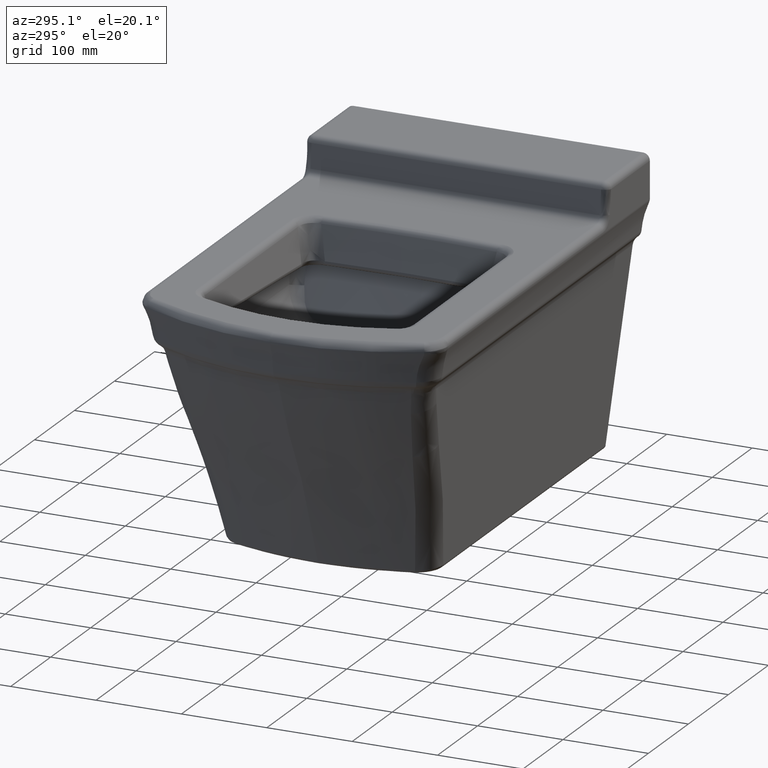
[diagram: clean part render]
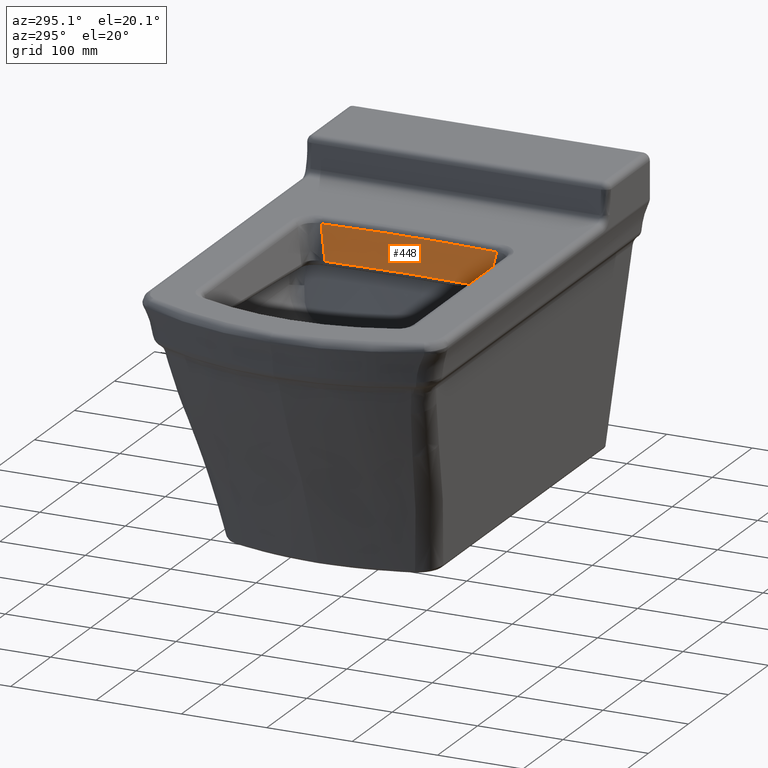
[diagram: same view with one face highlighted and labeled with its STEP entity id]
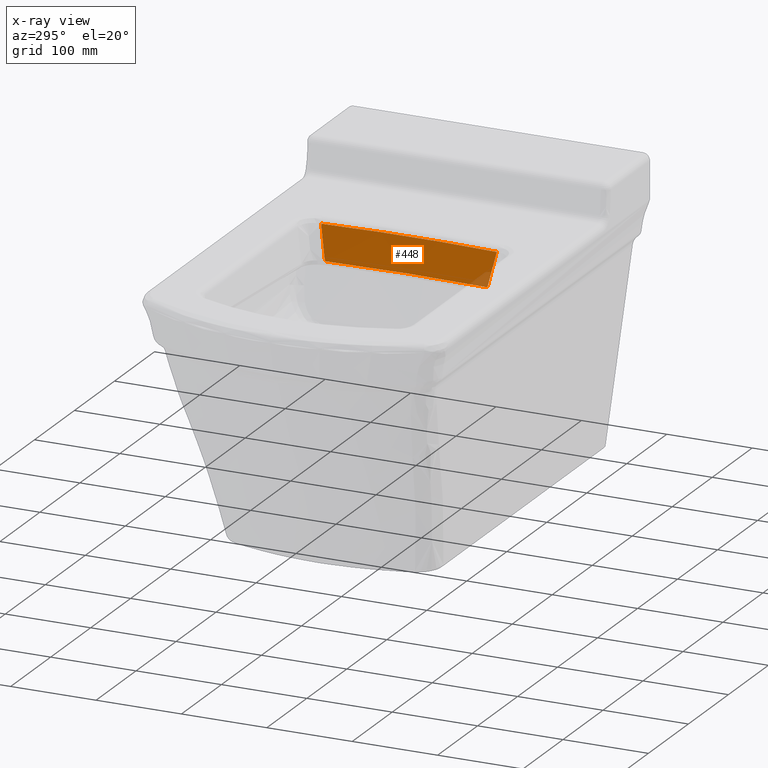
[diagram: x-ray of the same camera — body ghosted, the highlighted face saturated]
A machine part, auxiliary view. The second image highlights one B-rep face of the part: STEP entity #448.
The next image is the same camera in x-ray: the body ghosted, the highlighted face saturated — about 3% of this face is hidden behind the body in this view.
In plain terms, the highlighted conical surface has half-angle 11 deg.
Its self-contained STEP definition (entity closure, byte-faithful):
#177=CONICAL_SURFACE('',#3265,1446.38826422028,11.);
#241=CIRCLE('',#3264,1444.01725249402);
#448=ADVANCED_FACE('',(#703),#177,.F.);
#703=FACE_OUTER_BOUND('',#912,.T.);
#912=EDGE_LOOP('',(#1207,#1208,#1209,#1210,#1211));
#1207=ORIENTED_EDGE('',*,*,#2499,.T.);
#1208=ORIENTED_EDGE('',*,*,#2500,.T.);
#1209=ORIENTED_EDGE('',*,*,#2501,.F.);
#1210=ORIENTED_EDGE('',*,*,#2502,.F.);
#1211=ORIENTED_EDGE('',*,*,#2503,.T.);
#2193=VERTEX_POINT('',#4276);
#2194=VERTEX_POINT('',#4277);
#2195=VERTEX_POINT('',#4282);
#2196=VERTEX_POINT('',#4287);
#2197=VERTEX_POINT('',#4295);
#2499=EDGE_CURVE('',#2193,#2194,#2952,.T.);
#2500=EDGE_CURVE('',#2194,#2195,#2953,.T.);
#2501=EDGE_CURVE('',#2196,#2195,#2954,.T.);
#2502=EDGE_CURVE('',#2197,#2196,#2955,.T.);
#2503=EDGE_CURVE('',#2197,#2193,#241,.T.);
#2952=B_SPLINE_CURVE_WITH_KNOTS('',3,(#4269,#4270,#4271,#4272,#4273,#4274,
#4275),.UNSPECIFIED.,.F.,.F.,(4,3,4),(0.,0.412213099728883,1.),
 .UNSPECIFIED.);
#2953=B_SPLINE_CURVE_WITH_KNOTS('',3,(#4278,#4279,#4280,#4281),
 .UNSPECIFIED.,.F.,.F.,(4,4),(0.,1.),.UNSPECIFIED.);
#2954=B_SPLINE_CURVE_WITH_KNOTS('',3,(#4283,#4284,#4285,#4286),
 .UNSPECIFIED.,.F.,.F.,(4,4),(0.,1.),.UNSPECIFIED.);
#2955=B_SPLINE_CURVE_WITH_KNOTS('',3,(#4288,#4289,#4290,#4291,#4292,#4293,
#4294),.UNSPECIFIED.,.F.,.F.,(4,3,4),(0.,0.412213099728883,1.),
 .UNSPECIFIED.);
#3264=AXIS2_PLACEMENT_3D('',#4296,#3472,#3473);
#3265=AXIS2_PLACEMENT_3D('',#4297,#3474,#3475);
#3472=DIRECTION('',(0.,0.,1.));
#3473=DIRECTION('',(1.,0.,0.));
#3474=DIRECTION('',(0.,0.,1.));
#3475=DIRECTION('',(1.,0.,-1.32157842378291E-17));
#4269=CARTESIAN_POINT('',(-131.161515904011,102.819833761824,-9.15227975928344));
#4270=CARTESIAN_POINT('',(-132.127231314993,101.768414387846,-14.4929930062809));
#4271=CARTESIAN_POINT('',(-133.093913387043,100.717000150154,-19.8335325628184));
#4272=CARTESIAN_POINT('',(-134.06156787251,99.6655911706339,-25.1738968665133));
#4273=CARTESIAN_POINT('',(-135.441375114125,98.1663559109109,-32.7888807784049));
#4274=CARTESIAN_POINT('',(-136.823159606306,96.6671312591287,-40.4035087778462));
#4275=CARTESIAN_POINT('',(-138.206938226949,95.1679175762005,-48.0177762690992));
#4276=CARTESIAN_POINT('',(-131.161515904011,102.819833761824,-9.15227975928344));
#4277=CARTESIAN_POINT('',(-138.206938226949,95.1679175762005,-48.0177762690992));
#4278=CARTESIAN_POINT('',(-138.206938226952,95.1679175762003,-48.0177762690987));
#4279=CARTESIAN_POINT('',(-136.122867981138,63.4795898557749,-48.1202064252576));
#4280=CARTESIAN_POINT('',(-135.079062813878,31.756980066828,-48.1623591284685));
#4281=CARTESIAN_POINT('',(-135.079037583121,1.65687676720609E-14,-48.1622293274784));
#4282=CARTESIAN_POINT('',(-135.079037583121,0.,-48.1622293274784));
#4283=CARTESIAN_POINT('',(-138.206938226952,-95.1679175762003,-48.0177762690987));
#4284=CARTESIAN_POINT('',(-136.122867981138,-63.4795898557749,-48.1202064252576));
#4285=CARTESIAN_POINT('',(-135.079062813878,-31.756980066828,-48.1623591284685));
#4286=CARTESIAN_POINT('',(-135.079037583121,-1.65687676720609E-14,-48.1622293274784));
#4287=CARTESIAN_POINT('',(-138.206938226949,-95.1679175762005,-48.0177762690992));
#4288=CARTESIAN_POINT('',(-131.161515904011,-102.819833761824,-9.15227975928344));
#4289=CARTESIAN_POINT('',(-132.127231314993,-101.768414387846,-14.4929930062809));
#4290=CARTESIAN_POINT('',(-133.093913387043,-100.717000150154,-19.8335325628184));
#4291=CARTESIAN_POINT('',(-134.06156787251,-99.6655911706339,-25.1738968665133));
#4292=CARTESIAN_POINT('',(-135.441375114125,-98.1663559109109,-32.7888807784049));
#4293=CARTESIAN_POINT('',(-136.823159606306,-96.6671312591287,-40.4035087778462));
#4294=CARTESIAN_POINT('',(-138.206938226949,-95.1679175762005,-48.0177762690992));
#4295=CARTESIAN_POINT('',(-131.161515904011,-102.819833761824,-9.15227975928344));
#4296=CARTESIAN_POINT('',(-1571.51352402062,-2.12020621797649E-11,-9.1522797592834));
#4297=CARTESIAN_POINT('',(-1571.51352402062,-2.12020621797649E-11,3.04551813900058));